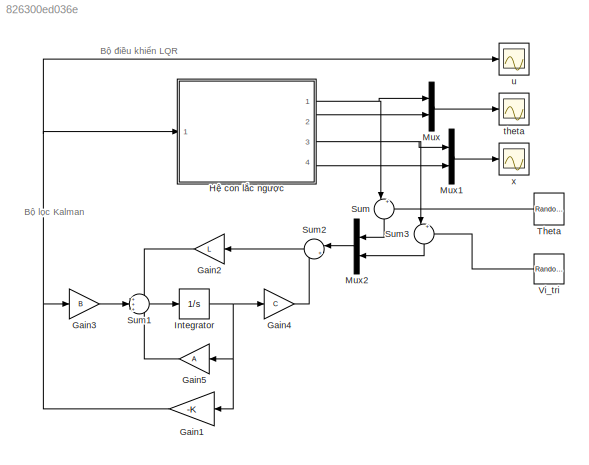
MODEL slx_826300ed036e
KIND model
CONFIG AbsTol = auto
CONFIG EnableMultiTasking = off
CONFIG FixedStep = 0.01
CONFIG MaxStep = auto
CONFIG MinStep = auto
CONFIG RelTol = 1e-3
CONFIG SampleTimeConstraint = Unconstrained
CONFIG Solver = FixedStepAuto
CONFIG SolverName = FixedStepAuto
CONFIG StartTime = 0.0
CONFIG StopTime = 6
BLOCK [Gain] Gain1
  Gain = -K
  Multiplication = Matrix(K*u)
  OutDataTypeStr = Inherit: Inherit via internal rule
  ParamDataTypeStr = Inherit: Inherit via internal rule
  SaturateOnIntegerOverflow = off
BLOCK [Gain] Gain2
  Gain = L
  Multiplication = Matrix(K*u)
  OutDataTypeStr = Inherit: Inherit via internal rule
  ParamDataTypeStr = Inherit: Inherit via internal rule
  SaturateOnIntegerOverflow = off
BLOCK [Gain] Gain3
  Gain = B
  Multiplication = Matrix(K*u)
  OutDataTypeStr = Inherit: Inherit via internal rule
  ParamDataTypeStr = Inherit: Inherit via internal rule
  SaturateOnIntegerOverflow = off
BLOCK [Gain] Gain4
  Gain = C
  Multiplication = Matrix(K*u)
  OutDataTypeStr = Inherit: Inherit via internal rule
  ParamDataTypeStr = Inherit: Inherit via internal rule
  SaturateOnIntegerOverflow = off
BLOCK [Gain] Gain5
  Gain = A
  Multiplication = Matrix(K*u)
  OutDataTypeStr = Inherit: Inherit via internal rule
  ParamDataTypeStr = Inherit: Inherit via internal rule
  SaturateOnIntegerOverflow = off
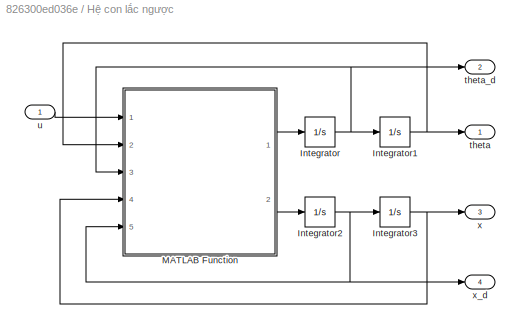
BLOCK [SubSystem] Hệ con lắc ngược
  Ports = [1, 4]
  RequestExecContextInheritance = off
BLOCK [Integrator] Hệ con lắc ngược/Integrator
  InitialCondition = thetadot_init
  Ports = [1, 1]
BLOCK [Integrator] Hệ con lắc ngược/Integrator1
  InitialCondition = theta_init
  Ports = [1, 1]
BLOCK [Integrator] Hệ con lắc ngược/Integrator2
  InitialCondition = xdot_init
  Ports = [1, 1]
BLOCK [Integrator] Hệ con lắc ngược/Integrator3
  InitialCondition = x_init
  Ports = [1, 1]
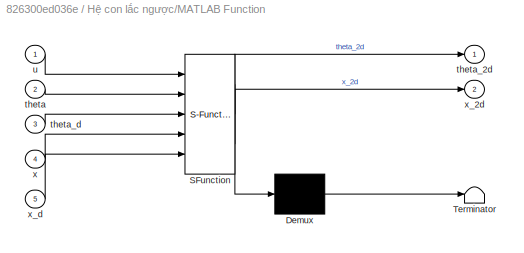
BLOCK [SubSystem] Hệ con lắc ngược/MATLAB Function
  ErrorFcn = Stateflow.Translate.translate
  PermitHierarchicalResolution = ExplicitOnly
  Ports = [5, 2]
  RequestExecContextInheritance = off
  SFBlockType = MATLAB Function
  TreatAsAtomicUnit = on
BLOCK [Demux] Hệ con lắc ngược/MATLAB Function/ Demux 
  Outputs = 1
  Ports = [1, 1]
BLOCK [S-Function] Hệ con lắc ngược/MATLAB Function/ SFunction 
  EnableBusSupport = on
  FunctionName = sf_sfun
  PortCounts = [5 3]
  Ports = [5, 3]
  SFcnIsStateOwnerBlock = off
  SFunctionDeploymentMode = off
  Tag = Stateflow S-Function LQG_Con_lac_nguoc 3
BLOCK [Terminator] Hệ con lắc ngược/MATLAB Function/ Terminator 
BLOCK [Inport] Hệ con lắc ngược/MATLAB Function/theta
  IconDisplay = Port number
  Port = 2
BLOCK [Outport] Hệ con lắc ngược/MATLAB Function/theta_2d
  IconDisplay = Port number
BLOCK [Inport] Hệ con lắc ngược/MATLAB Function/theta_d
  IconDisplay = Port number
  Port = 3
BLOCK [Inport] Hệ con lắc ngược/MATLAB Function/u
  IconDisplay = Port number
BLOCK [Inport] Hệ con lắc ngược/MATLAB Function/x
  IconDisplay = Port number
  Port = 4
BLOCK [Outport] Hệ con lắc ngược/MATLAB Function/x_2d
  IconDisplay = Port number
  Port = 2
BLOCK [Inport] Hệ con lắc ngược/MATLAB Function/x_d
  IconDisplay = Port number
  Port = 5
BLOCK [Outport] Hệ con lắc ngược/theta
  IconDisplay = Port number
BLOCK [Outport] Hệ con lắc ngược/theta_d
  IconDisplay = Port number
  Port = 2
BLOCK [Inport] Hệ con lắc ngược/u
  IconDisplay = Port number
BLOCK [Outport] Hệ con lắc ngược/x
  IconDisplay = Port number
  Port = 3
BLOCK [Outport] Hệ con lắc ngược/x_d
  IconDisplay = Port number
  Port = 4
BLOCK [Integrator] Integrator
  Ports = [1, 1]
BLOCK [Mux] Mux
  DisplayOption = bar
  Inputs = 2
  Ports = [2, 1]
BLOCK [Mux] Mux1
  DisplayOption = bar
  Inputs = 2
  Ports = [2, 1]
BLOCK [Mux] Mux2
  DisplayOption = bar
  Inputs = 2
  Ports = [2, 1]
BLOCK [Sum] Sum
  IconShape = round
  InputSameDT = off
  Inputs = |++
  OutDataTypeStr = Inherit: Inherit via internal rule
  Ports = [2, 1]
  SaturateOnIntegerOverflow = off
BLOCK [Sum] Sum1
  IconShape = round
  InputSameDT = off
  Inputs = +++
  OutDataTypeStr = Inherit: Inherit via internal rule
  Ports = [3, 1]
  SaturateOnIntegerOverflow = off
BLOCK [Sum] Sum2
  IconShape = round
  InputSameDT = off
  Inputs = |+-
  OutDataTypeStr = Inherit: Inherit via internal rule
  Ports = [2, 1]
  SaturateOnIntegerOverflow = off
BLOCK [Sum] Sum3
  IconShape = round
  InputSameDT = off
  Inputs = |++
  OutDataTypeStr = Inherit: Inherit via internal rule
  Ports = [2, 1]
  SaturateOnIntegerOverflow = off
BLOCK [RandomNumber] Theta
  SampleTime = 0.01
  Variance = 0.001
BLOCK [RandomNumber] Vi_tri
  SampleTime = 0.01
  Variance = 0.01
BLOCK [Scope] theta
  Floating = off
  NumInputPorts = 1
  Ports = [1]
  ScopeSpecificationString = Simulink.scopes.TimeScopeBlockCfg('CurrentConfiguration', extmgr.ConfigurationSet(extmgr.Configuration('Core','General UI',true,'FigureColor',[1 1 1]),extmgr.Configuration('Core','Source UI',true),extmgr.Configuration('Sources','WiredSimulink',true,'DataLoggingVariableName','ScopeData1'),extmgr.Configuration('Visuals','Time Domain',true,'SerializedDisplays',{struct('MinYLimReal','-1.19319','MaxYLi...<+1633ch>
BLOCK [Scope] u
  Floating = off
  NumInputPorts = 1
  Ports = [1]
  ScopeSpecificationString = Simulink.scopes.TimeScopeBlockCfg('CurrentConfiguration', extmgr.ConfigurationSet(extmgr.Configuration('Core','General UI',true,'FigureColor',[1 1 1]),extmgr.Configuration('Core','Source UI',true),extmgr.Configuration('Sources','WiredSimulink',true),extmgr.Configuration('Visuals','Time Domain',true,'SerializedDisplays',{struct('MinYLimReal','-8.00797','MaxYLimReal','9.85594','YLabelReal','','MinYL...<+1475ch>
BLOCK [Scope] x
  Floating = off
  NumInputPorts = 1
  Ports = [1]
  ScopeSpecificationString = Simulink.scopes.TimeScopeBlockCfg('CurrentConfiguration', extmgr.ConfigurationSet(extmgr.Configuration('Core','General UI',true,'FigureColor',[1 1 1]),extmgr.Configuration('Core','Source UI',true),extmgr.Configuration('Sources','WiredSimulink',true,'DataLoggingVariableName','ScopeData2'),extmgr.Configuration('Visuals','Time Domain',true,'SerializedDisplays',{struct('MinYLimReal','-1.59005','MaxYLi...<+1635ch>
ANNOTATION (root): Bộ lọc Kalman
ANNOTATION (root): Bộ điều khiển LQR
NET Gain1:1 -> Gain3:1, Hệ con lắc ngược:1, u:1
LINE Gain2:1 -> Sum1:1
LINE Gain3:1 -> Sum1:2
LINE Gain4:1 -> Sum2:2
LINE Gain5:1 -> Sum1:3
NET Hệ con lắc ngược/Integrator1:1 -> Hệ con lắc ngược/MATLAB Function:2, Hệ con lắc ngược/theta:1
NET Hệ con lắc ngược/Integrator2:1 -> Hệ con lắc ngược/Integrator3:1, Hệ con lắc ngược/MATLAB Function:5, Hệ con lắc ngược/x_d:1
NET Hệ con lắc ngược/Integrator3:1 -> Hệ con lắc ngược/MATLAB Function:4, Hệ con lắc ngược/x:1
NET Hệ con lắc ngược/Integrator:1 -> Hệ con lắc ngược/Integrator1:1, Hệ con lắc ngược/MATLAB Function:3, Hệ con lắc ngược/theta_d:1
LINE Hệ con lắc ngược/MATLAB Function:1 -> Hệ con lắc ngược/Integrator:1
LINE Hệ con lắc ngược/MATLAB Function:2 -> Hệ con lắc ngược/Integrator2:1
LINE Hệ con lắc ngược/u:1 -> Hệ con lắc ngược/MATLAB Function:1
NET Hệ con lắc ngược:1 -> Mux:1, Sum:1
LINE Hệ con lắc ngược:2 -> Mux:2
NET Hệ con lắc ngược:3 -> Mux1:1, Sum3:1
LINE Hệ con lắc ngược:4 -> Mux1:2
NET Integrator:1 -> Gain1:1, Gain4:1, Gain5:1
LINE Mux1:1 -> x:1
LINE Mux2:1 -> Sum2:1
LINE Mux:1 -> theta:1
LINE Sum1:1 -> Integrator:1
LINE Sum2:1 -> Gain2:1
LINE Sum3:1 -> Mux2:2
LINE Sum:1 -> Mux2:1
LINE Theta:1 -> Sum:2
LINE Vi_tri:1 -> Sum3:2
note: NET lines group one-source signal fan-out (src -> all destinations, sorted); 1:1 wires keep LINE
CHART Hệ con lắc ngược/MATLAB Function states=1 transitions=1
  STATE_LABEL 'eML_blk_kernel()'
  STATE_LABEL 'SCRIPT:\nfunction [theta_2d,x_2d] = Inverted_Pendulum(u,theta,theta_d,x,x_d)\nM = 1;\nm = 0.1;\nl = 1;\ng = 9.81; %m/s^2\n%% Con lac nguoc tren xe\nx_2d = (u+m*l*sin(theta)*(theta_d)^2-m*g*cos(theta)*sin(theta))/(M+m-m*(cos(theta))^2);\ntheta_2d = (u*cos(theta)-(M+m)*g*sin(theta)+m*l*cos(theta)*sin(theta)*(theta_d)^2)/(m*l*(cos(theta))^2-(M+m)*l);\n'
